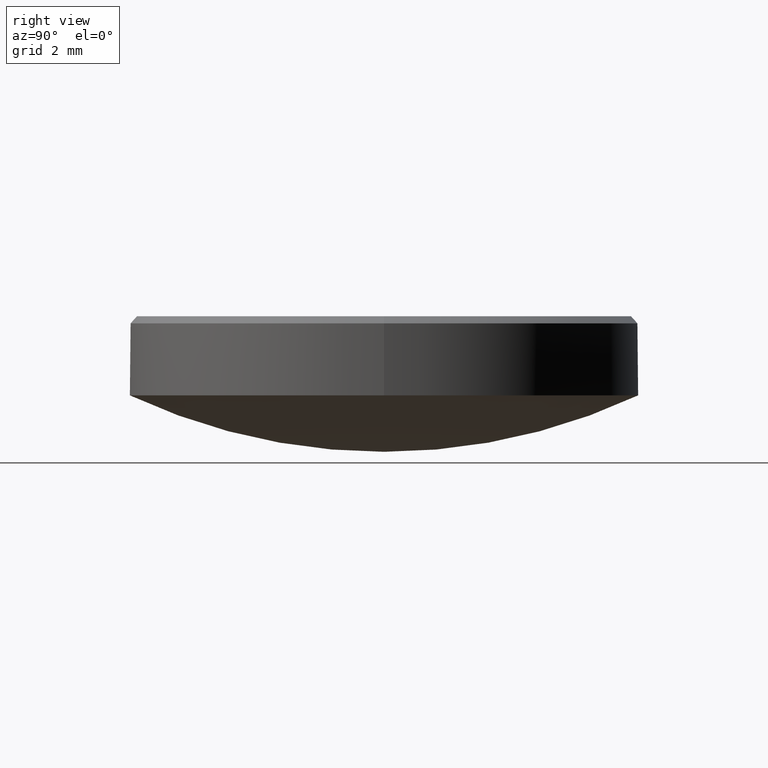
[diagram: clean part render]
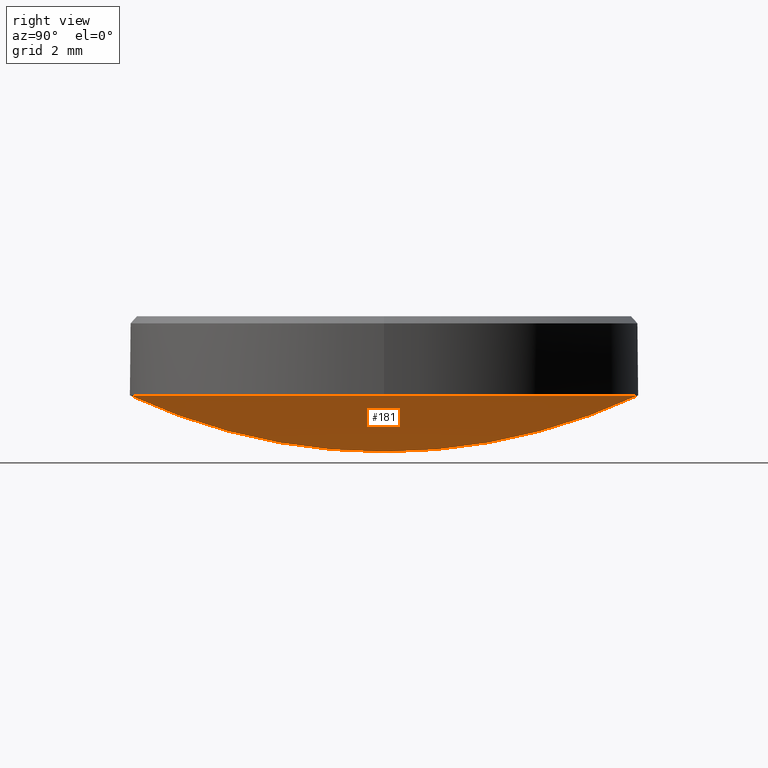
[diagram: same view with one face highlighted and labeled with its STEP entity id]
A machine part, right view. The second image highlights one B-rep face of the part: STEP entity #181.
In plain terms, the highlighted spherical surface has radius 15 mm.
Its self-contained STEP definition (entity closure, byte-faithful):
#14 = AXIS2_PLACEMENT_3D ( 'NONE', #156, #234, #276 ) ;
#16 = CARTESIAN_POINT ( 'NONE',  ( -7.776507174585693149E-16, -6.350000000000001421, 3.999999999999999112 ) ) ;
#19 = CARTESIAN_POINT ( 'NONE',  ( 0.000000000000000000, 0.000000000000000000, 17.58961000176237732 ) ) ;
#23 = AXIS2_PLACEMENT_3D ( 'NONE', #41, #126, #253 ) ;
#24 = CIRCLE ( 'NONE', #35, 15.00000000000000355 ) ;
#31 = ORIENTED_EDGE ( 'NONE', *, *, #232, .F. ) ;
#35 = AXIS2_PLACEMENT_3D ( 'NONE', #19, #195, #217 ) ;
#39 = DIRECTION ( 'NONE',  ( -0.000000000000000000, -0.000000000000000000, 1.000000000000000000 ) ) ;
#41 = CARTESIAN_POINT ( 'NONE',  ( 0.000000000000000000, 0.000000000000000000, 17.58961000176237732 ) ) ;
#62 = FACE_OUTER_BOUND ( 'NONE', #168, .T. ) ;
#80 = DIRECTION ( 'NONE',  ( -1.000000000000000000, 0.000000000000000000, 0.000000000000000000 ) ) ;
#84 = DIRECTION ( 'NONE',  ( 0.000000000000000000, 1.000000000000000000, 0.000000000000000000 ) ) ;
#87 = CIRCLE ( 'NONE', #14, 6.349999999999998757 ) ;
#94 = ORIENTED_EDGE ( 'NONE', *, *, #263, .F. ) ;
#102 = CARTESIAN_POINT ( 'NONE',  ( 6.349999999999998757, 7.776507174585691177E-16, 4.000000000000000000 ) ) ;
#105 = CARTESIAN_POINT ( 'NONE',  ( 0.000000000000000000, 6.350000000000001421, 3.999999999999999112 ) ) ;
#108 = CARTESIAN_POINT ( 'NONE',  ( 0.000000000000000000, 0.000000000000000000, 4.000000000000000000 ) ) ;
#111 = DIRECTION ( 'NONE',  ( 1.000000000000000000, 0.000000000000000000, 0.000000000000000000 ) ) ;
#118 = VERTEX_POINT ( 'NONE', #167 ) ;
#126 = DIRECTION ( 'NONE',  ( 1.000000000000000000, -0.000000000000000000, 0.000000000000000000 ) ) ;
#138 = ORIENTED_EDGE ( 'NONE', *, *, #182, .T. ) ;
#148 = CIRCLE ( 'NONE', #23, 15.00000000000000355 ) ;
#156 = CARTESIAN_POINT ( 'NONE',  ( 0.000000000000000000, 0.000000000000000000, 4.000000000000000000 ) ) ;
#167 = CARTESIAN_POINT ( 'NONE',  ( 0.000000000000000000, 9.184850993605149917E-16, 2.589610001762374214 ) ) ;
#168 = EDGE_LOOP ( 'NONE', ( #94, #138, #170, #31 ) ) ;
#170 = ORIENTED_EDGE ( 'NONE', *, *, #203, .F. ) ;
#174 = SPHERICAL_SURFACE ( 'NONE', #180, 15.00000000000000355 ) ;
#180 = AXIS2_PLACEMENT_3D ( 'NONE', #279, #80, #84 ) ;
#181 = ADVANCED_FACE ( 'NONE', ( #62 ), #174, .T. ) ;
#182 = EDGE_CURVE ( 'NONE', #118, #204, #148, .T. ) ;
#186 = AXIS2_PLACEMENT_3D ( 'NONE', #108, #39, #111 ) ;
#195 = DIRECTION ( 'NONE',  ( -1.000000000000000000, 1.224646799147353207E-16, 0.000000000000000000 ) ) ;
#201 = CIRCLE ( 'NONE', #186, 6.349999999999998757 ) ;
#203 = EDGE_CURVE ( 'NONE', #245, #204, #87, .T. ) ;
#204 = VERTEX_POINT ( 'NONE', #105 ) ;
#217 = DIRECTION ( 'NONE',  ( -1.224646799147352961E-16, -1.000000000000000000, 0.000000000000000000 ) ) ;
#232 = EDGE_CURVE ( 'NONE', #272, #245, #201, .T. ) ;
#234 = DIRECTION ( 'NONE',  ( -0.000000000000000000, -0.000000000000000000, 1.000000000000000000 ) ) ;
#245 = VERTEX_POINT ( 'NONE', #102 ) ;
#253 = DIRECTION ( 'NONE',  ( 0.000000000000000000, 0.000000000000000000, -1.000000000000000000 ) ) ;
#263 = EDGE_CURVE ( 'NONE', #118, #272, #24, .T. ) ;
#272 = VERTEX_POINT ( 'NONE', #16 ) ;
#276 = DIRECTION ( 'NONE',  ( 1.000000000000000000, 0.000000000000000000, 0.000000000000000000 ) ) ;
#279 = CARTESIAN_POINT ( 'NONE',  ( 0.000000000000000000, 0.000000000000000000, 17.58961000176237732 ) ) ;